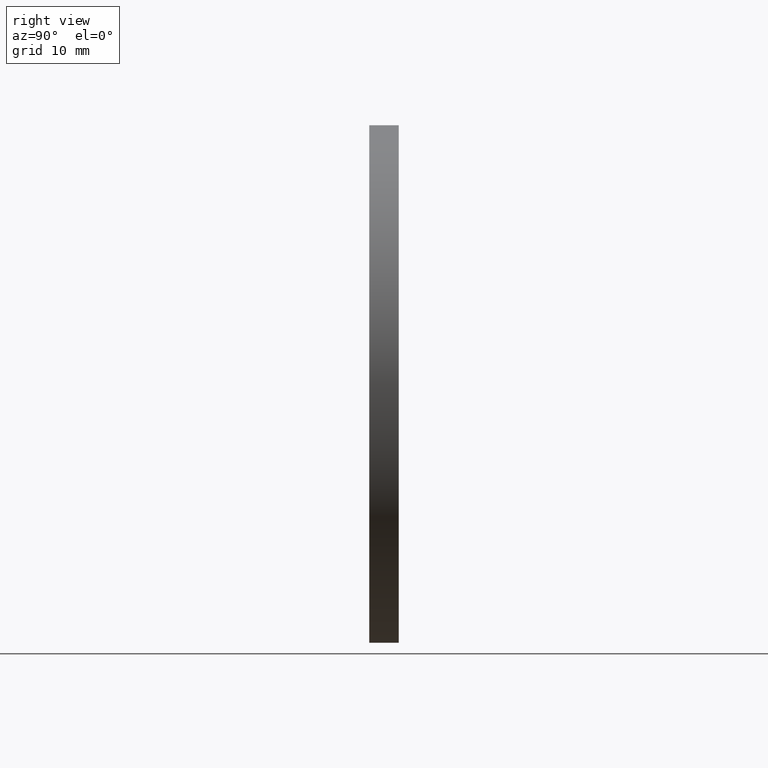
[diagram: clean part render]
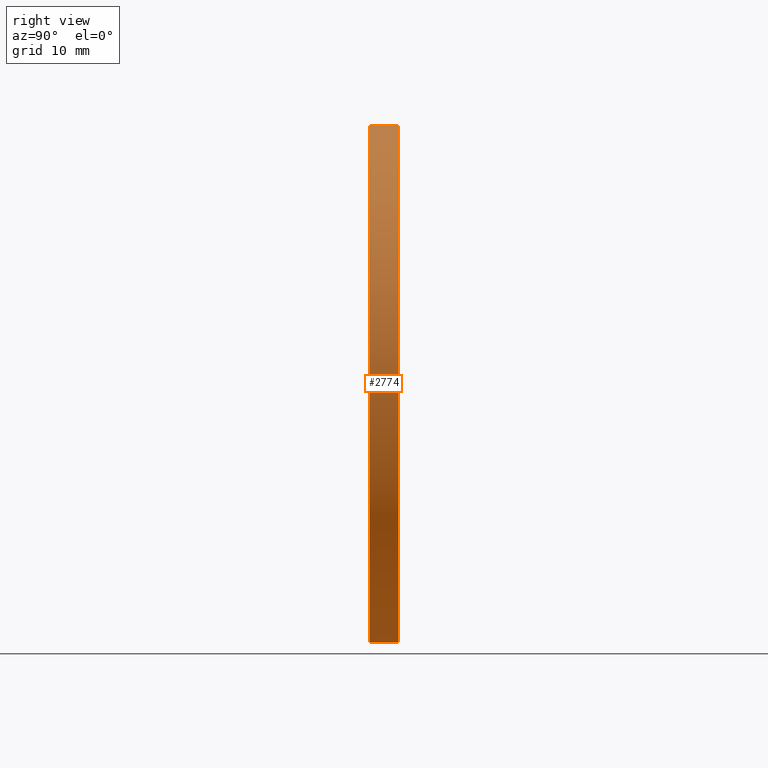
[diagram: same view with one face highlighted and labeled with its STEP entity id]
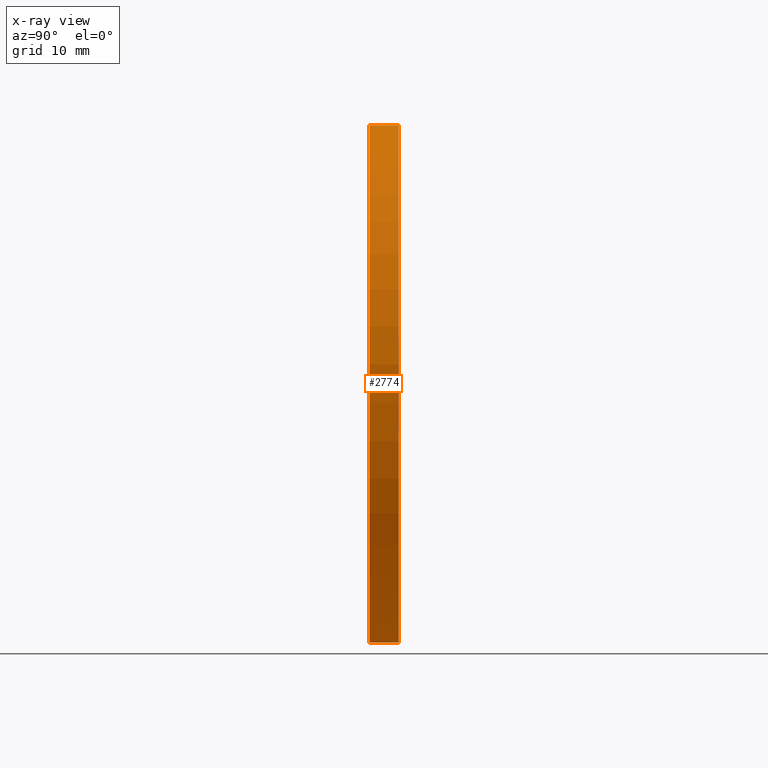
[diagram: x-ray of the same camera — body ghosted, the highlighted face saturated]
A machine part, right view. The second image highlights one B-rep face of the part: STEP entity #2774.
The next image is the same camera in x-ray: the body ghosted, the highlighted face saturated — about 0% of this face is hidden behind the body in this view.
In plain terms, the highlighted cylindrical surface (partial cylindrical patch) has radius 35 mm, axis along (-0, -1, -0).
Its self-contained STEP definition (entity closure, byte-faithful):
#109 = EDGE_CURVE ( 'NONE', #248, #10203, #3245, .T. ) ;
#248 = VERTEX_POINT ( 'NONE', #2107 ) ;
#479 = ORIENTED_EDGE ( 'NONE', *, *, #5822, .T. ) ;
#730 = CARTESIAN_POINT ( 'NONE',  ( 0.0000000000000000000, 4.000000000000000000, 0.0000000000000000000 ) ) ;
#1625 = DIRECTION ( 'NONE',  ( -0.0000000000000000000, -1.000000000000000000, -0.0000000000000000000 ) ) ;
#2107 = CARTESIAN_POINT ( 'NONE',  ( 4.286263797015737300E-015, 4.000000000000000000, 35.00000000000000700 ) ) ;
#2774 = ADVANCED_FACE ( 'NONE', ( #8295 ), #3550, .T. ) ;
#2779 = CARTESIAN_POINT ( 'NONE',  ( 0.0000000000000000000, 0.0000000000000000000, -35.00000000000000700 ) ) ;
#2938 = AXIS2_PLACEMENT_3D ( 'NONE', #5446, #5560, #6135 ) ;
#2989 = DIRECTION ( 'NONE',  ( 0.0000000000000000000, 0.0000000000000000000, 1.000000000000000000 ) ) ;
#3028 = AXIS2_PLACEMENT_3D ( 'NONE', #5159, #8084, #4115 ) ;
#3245 = CIRCLE ( 'NONE', #6339, 35.00000000000000700 ) ;
#3341 = EDGE_CURVE ( 'NONE', #248, #6719, #7255, .T. ) ;
#3550 = CYLINDRICAL_SURFACE ( 'NONE', #3028, 35.00000000000000700 ) ;
#3667 = VECTOR ( 'NONE', #3807, 1000.000000000000000 ) ;
#3742 = CARTESIAN_POINT ( 'NONE',  ( 4.286263797015737300E-015, 4.000000000000000000, 35.00000000000000700 ) ) ;
#3807 = DIRECTION ( 'NONE',  ( -0.0000000000000000000, -1.000000000000000000, -0.0000000000000000000 ) ) ;
#3990 = ORIENTED_EDGE ( 'NONE', *, *, #3341, .T. ) ;
#4115 = DIRECTION ( 'NONE',  ( 0.0000000000000000000, 0.0000000000000000000, -1.000000000000000000 ) ) ;
#4692 = EDGE_CURVE ( 'NONE', #10203, #13635, #6023, .T. ) ;
#5159 = CARTESIAN_POINT ( 'NONE',  ( 0.0000000000000000000, 4.000000000000000000, 0.0000000000000000000 ) ) ;
#5446 = CARTESIAN_POINT ( 'NONE',  ( 0.0000000000000000000, 0.0000000000000000000, 0.0000000000000000000 ) ) ;
#5506 = EDGE_LOOP ( 'NONE', ( #6038, #3990, #479, #10255 ) ) ;
#5560 = DIRECTION ( 'NONE',  ( 0.0000000000000000000, 1.000000000000000000, 0.0000000000000000000 ) ) ;
#5822 = EDGE_CURVE ( 'NONE', #6719, #13635, #13752, .T. ) ;
#6023 = LINE ( 'NONE', #9312, #3667 ) ;
#6038 = ORIENTED_EDGE ( 'NONE', *, *, #109, .F. ) ;
#6135 = DIRECTION ( 'NONE',  ( 0.0000000000000000000, 0.0000000000000000000, 1.000000000000000000 ) ) ;
#6339 = AXIS2_PLACEMENT_3D ( 'NONE', #730, #10424, #2989 ) ;
#6536 = CARTESIAN_POINT ( 'NONE',  ( 0.0000000000000000000, 4.000000000000000000, -35.00000000000000700 ) ) ;
#6610 = CARTESIAN_POINT ( 'NONE',  ( 4.286263797015737300E-015, 0.0000000000000000000, 35.00000000000000700 ) ) ;
#6719 = VERTEX_POINT ( 'NONE', #6610 ) ;
#7255 = LINE ( 'NONE', #3742, #8297 ) ;
#8084 = DIRECTION ( 'NONE',  ( -0.0000000000000000000, -1.000000000000000000, -0.0000000000000000000 ) ) ;
#8295 = FACE_OUTER_BOUND ( 'NONE', #5506, .T. ) ;
#8297 = VECTOR ( 'NONE', #1625, 1000.000000000000000 ) ;
#9312 = CARTESIAN_POINT ( 'NONE',  ( 0.0000000000000000000, 4.000000000000000000, -35.00000000000000700 ) ) ;
#10203 = VERTEX_POINT ( 'NONE', #6536 ) ;
#10255 = ORIENTED_EDGE ( 'NONE', *, *, #4692, .F. ) ;
#10424 = DIRECTION ( 'NONE',  ( 0.0000000000000000000, 1.000000000000000000, 0.0000000000000000000 ) ) ;
#13635 = VERTEX_POINT ( 'NONE', #2779 ) ;
#13752 = CIRCLE ( 'NONE', #2938, 35.00000000000000700 ) ;